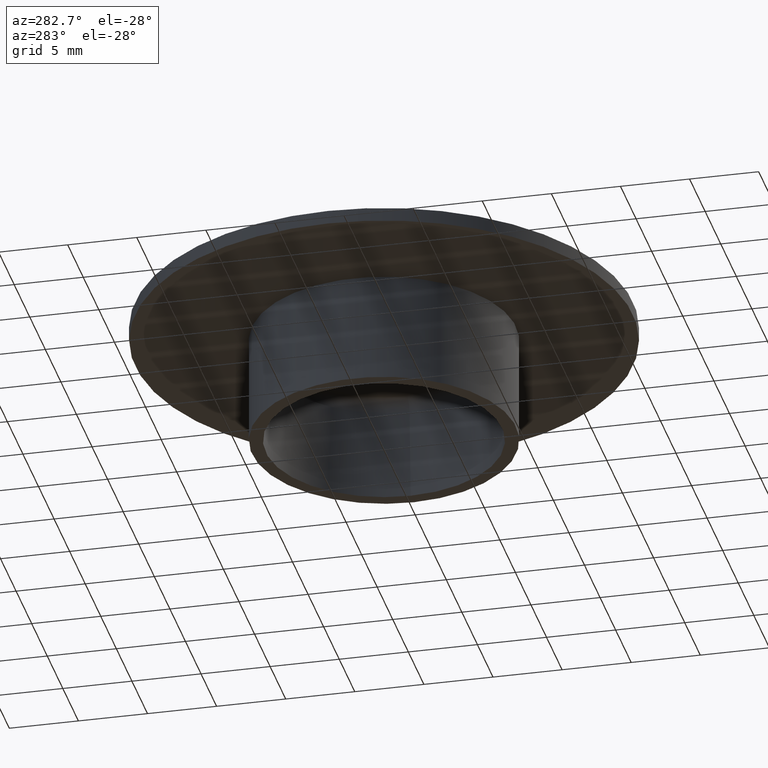
[diagram: clean part render]
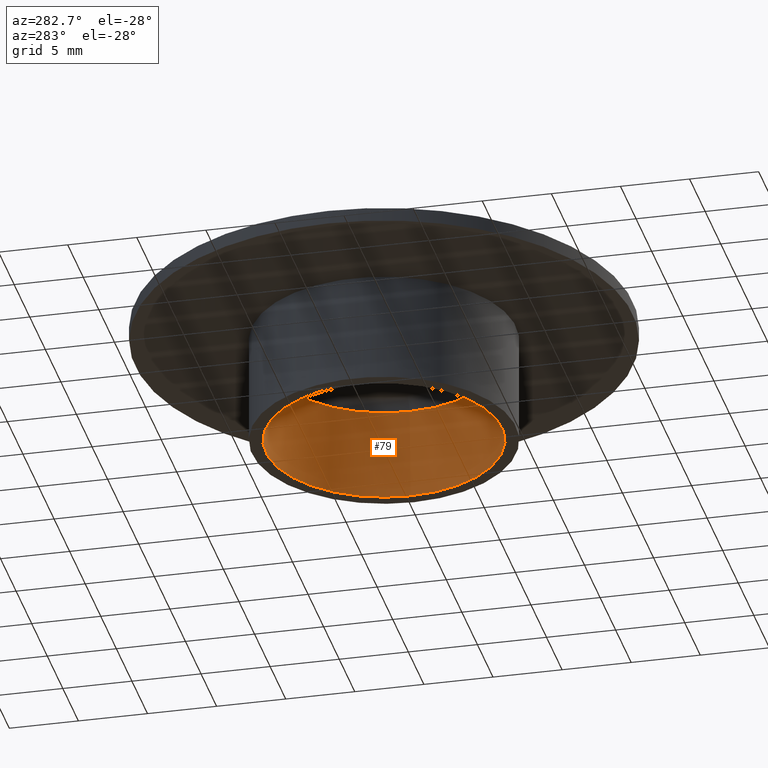
[diagram: same view with one face highlighted and labeled with its STEP entity id]
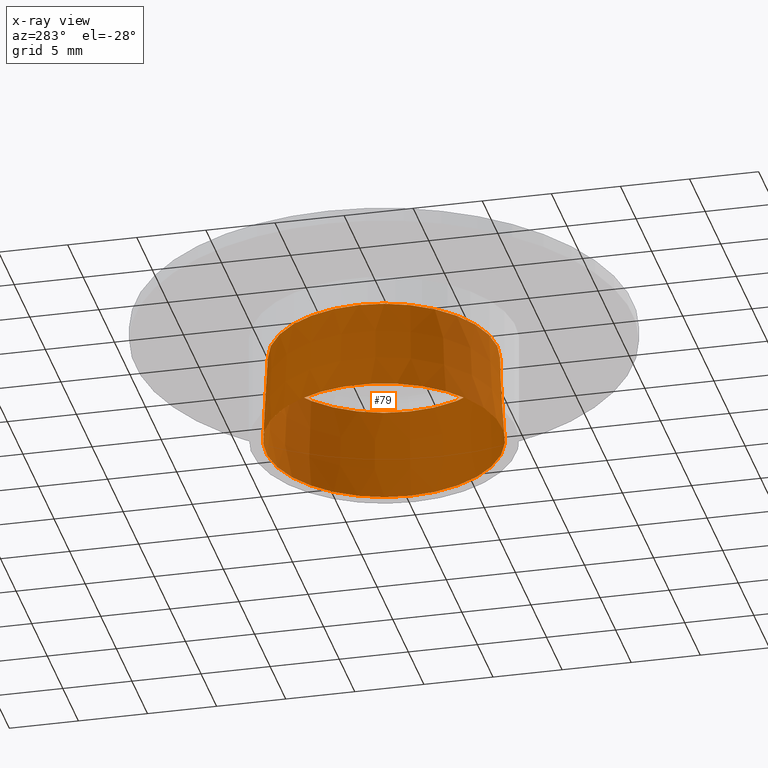
[diagram: x-ray of the same camera — body ghosted, the highlighted face saturated]
A machine part, auxiliary view. The second image highlights one B-rep face of the part: STEP entity #79.
The next image is the same camera in x-ray: the body ghosted, the highlighted face saturated — about 0% of this face is hidden behind the body in this view.
In plain terms, the highlighted conical surface has half-angle 3 deg.
Its self-contained STEP definition (entity closure, byte-faithful):
#79 = ADVANCED_FACE( '', ( #96, #97 ), #98, .F. );
#96 = FACE_OUTER_BOUND( '', #118, .T. );
#97 = FACE_BOUND( '', #119, .T. );
#98 = CONICAL_SURFACE( '', #120, 8.20660662341687, 0.0523598775598309 );
#118 = EDGE_LOOP( '', ( #148 ) );
#119 = EDGE_LOOP( '', ( #149 ) );
#120 = AXIS2_PLACEMENT_3D( '', #150, #151, #152 );
#148 = ORIENTED_EDGE( '', *, *, #170, .F. );
#149 = ORIENTED_EDGE( '', *, *, #171, .T. );
#150 = CARTESIAN_POINT( '', ( -4.01201612219696E-016, 0.000000000000000, 6.55233595624293 ) );
#151 = DIRECTION( '', ( 6.12303176911189E-017, 0.000000000000000, -1.00000000000000 ) );
#152 = DIRECTION( '', ( -1.00000000000000, 0.000000000000000, -6.12303176911189E-017 ) );
#170 = EDGE_CURVE( '', #181, #181, #182, .T. );
#171 = EDGE_CURVE( '', #183, #183, #184, .T. );
#181 = VERTEX_POINT( '', #195 );
#182 = CIRCLE( '', #196, 8.54999999999999 );
#183 = VERTEX_POINT( '', #197 );
#184 = CIRCLE( '', #198, 8.20660662341687 );
#195 = CARTESIAN_POINT( '', ( 8.54999999999999, 0.000000000000000, -6.41537468764816E-015 ) );
#196 = AXIS2_PLACEMENT_3D( '', #213, #214, #215 );
#197 = CARTESIAN_POINT( '', ( 8.20660662341687, 0.000000000000000, 6.55233595624293 ) );
#198 = AXIS2_PLACEMENT_3D( '', #216, #217, #218 );
#213 = CARTESIAN_POINT( '', ( 4.24870678161208E-031, 0.000000000000000, -6.93889390390723E-015 ) );
#214 = DIRECTION( '', ( -6.12303176911189E-017, 0.000000000000000, 1.00000000000000 ) );
#215 = DIRECTION( '', ( 1.00000000000000, 0.000000000000000, 6.12303176911189E-017 ) );
#216 = CARTESIAN_POINT( '', ( -4.01201612219696E-016, 0.000000000000000, 6.55233595624293 ) );
#217 = DIRECTION( '', ( -6.12303176911189E-017, 0.000000000000000, 1.00000000000000 ) );
#218 = DIRECTION( '', ( 1.00000000000000, 0.000000000000000, 6.12303176911189E-017 ) );